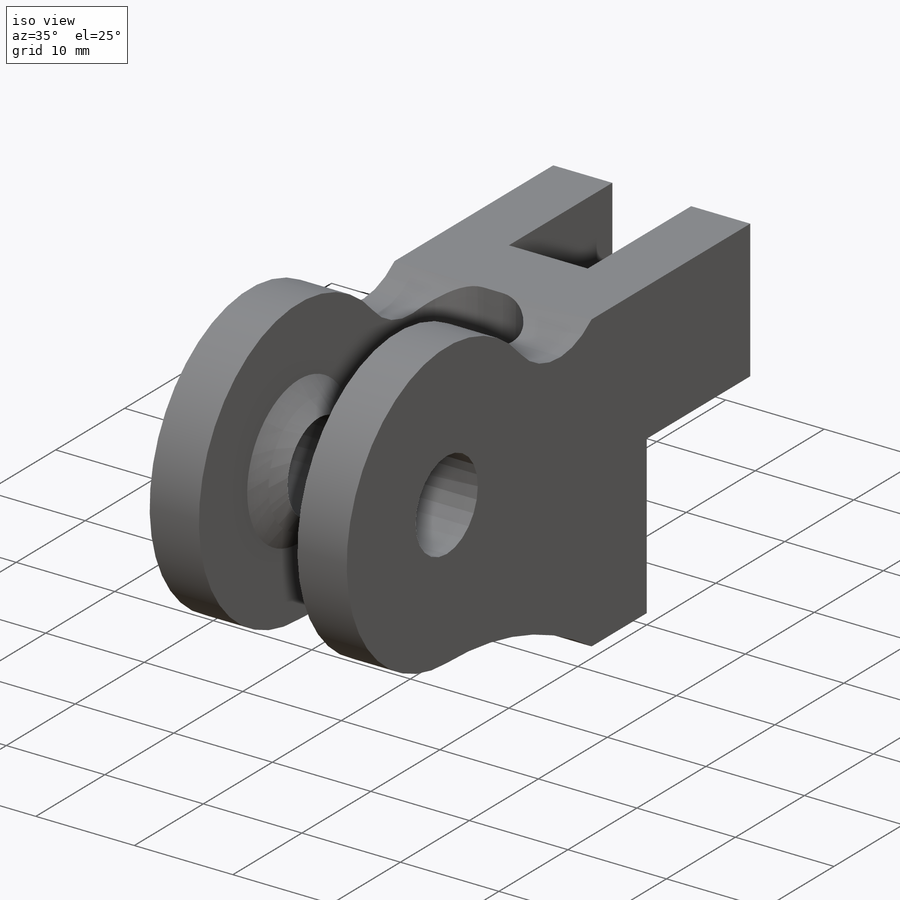
[diagram: iso view]
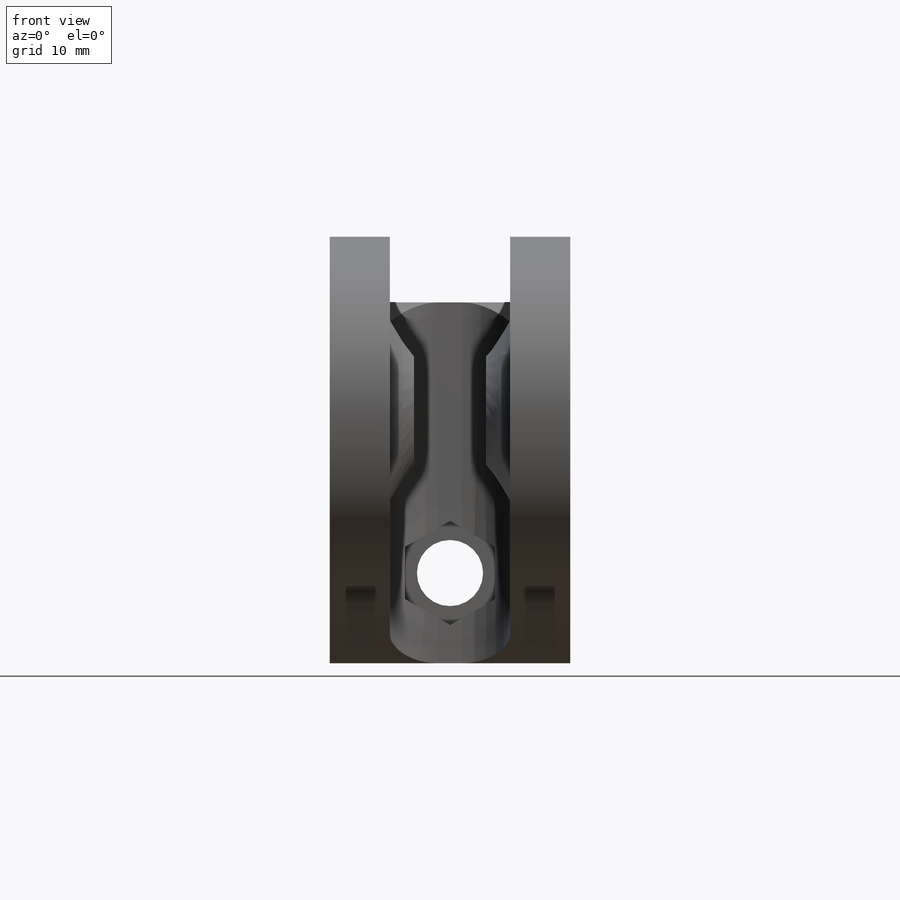
[diagram: front view]
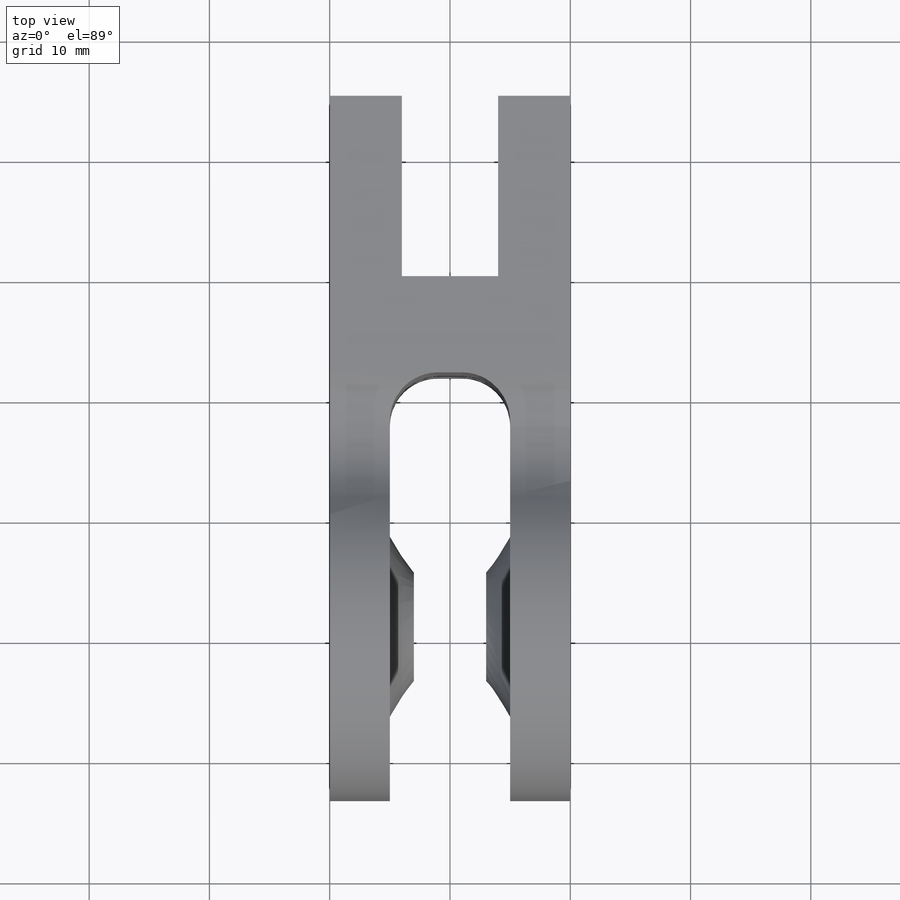
[diagram: top view]
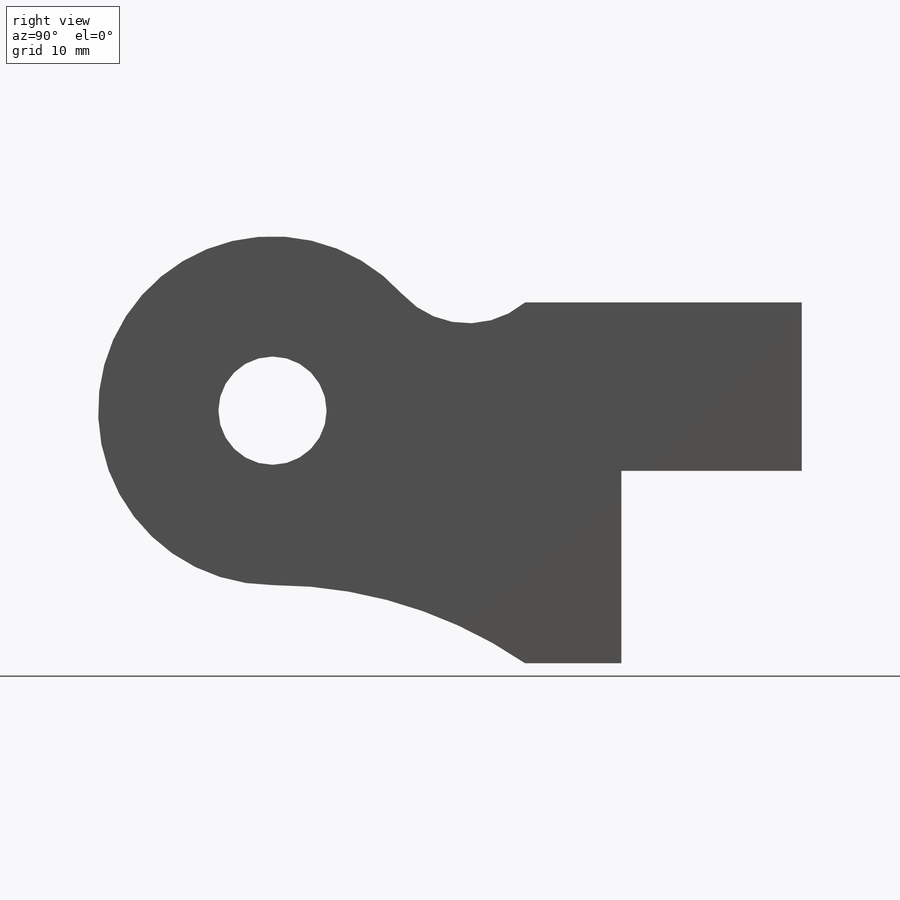
[diagram: right view]
SOLIDWORKS PART (.sldprt)
format: sldprt  version: not decoded by parser v0  size: 306,688 bytes
history: native  units: mm
features: sketch x8, plane x4, extrude x3, cut_extrude x3, mirror x2, material x1, fillet x1 (+10 scaffold rows collapsed)
feature tree (32):
  scaffold x10  (default folders/planes/origin — collapsed)
  material  "Matériau <non spécifié>"
  plane  "Plan de face"
  plane  "Plan de dessus"
  plane  "Plan de droite"
  sketch  "Esquisse1"  dims[D1=30.0mm D2=20.0mm]
  extrude  "Boss.-Extru.1"  Depth=8mm
  sketch  "Esquisse2"  dims[D1=14.0mm D2=6.0mm]
  extrude  "Boss.-Extru.2"  Depth=15mm
  mirror  "Symétrie1"
  sketch  "Esquisse3"  dims[D2=5.5mm D1=7.5mm]
  cut_extrude  "Enlèv. mat.-Extru.1"  [1 undecoded]
  sketch  "Esquisse4"  dims[c1.D2=9.0mm c1.D4=9.0mm c1.D1=21.0mm c1.D3=9.0mm c2.D4=10.0mm c2.D5=14.5mm c3.D5=14.5mm c4.D5=42.0deg]
  extrude  "Boss.-Extru.3"  Depth=5mm
  sketch  "Esquisse5"  dims[D1=15.0mm D2=9.0mm]
  plane  "Plan2"  Offset=2mm
  sketch  "Esquisse6"  dims[D1=9.0mm]
  cut_extrude  "Enlèv. mat.-Extru.2"  [1 undecoded]
  sketch  "Esquisse6<2>"  dims[D1=5.0mm]
  mirror  "Symétrie3"
  sketch  "Esquisse7"  dims[c1.D1=7.5mm c1.D2=~2.020726mm c2.D2=60.0deg]
  cut_extrude  "Enlèv. mat.-Extru.3"  Depth=3mm
  fillet  "Congé1"  Radius=4mm
decode coverage: 13 of 17 modeling features carry decoded parameters
note: ~ marks probable driven/reference dimensions
note: 2 parameter values undecoded
note: suppression state not decoded; provenance and decode notes live in map.json
